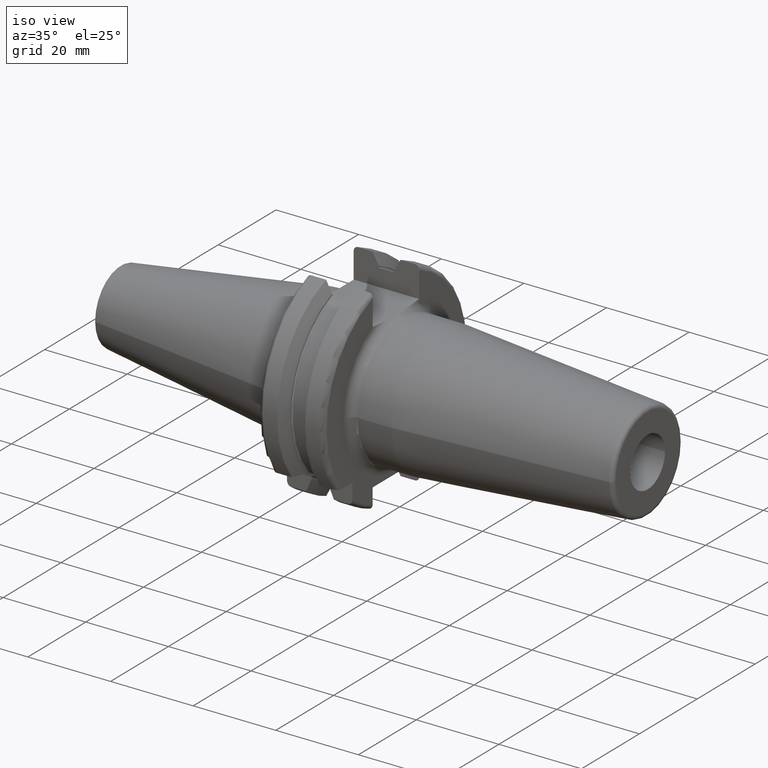
[diagram: clean part render]
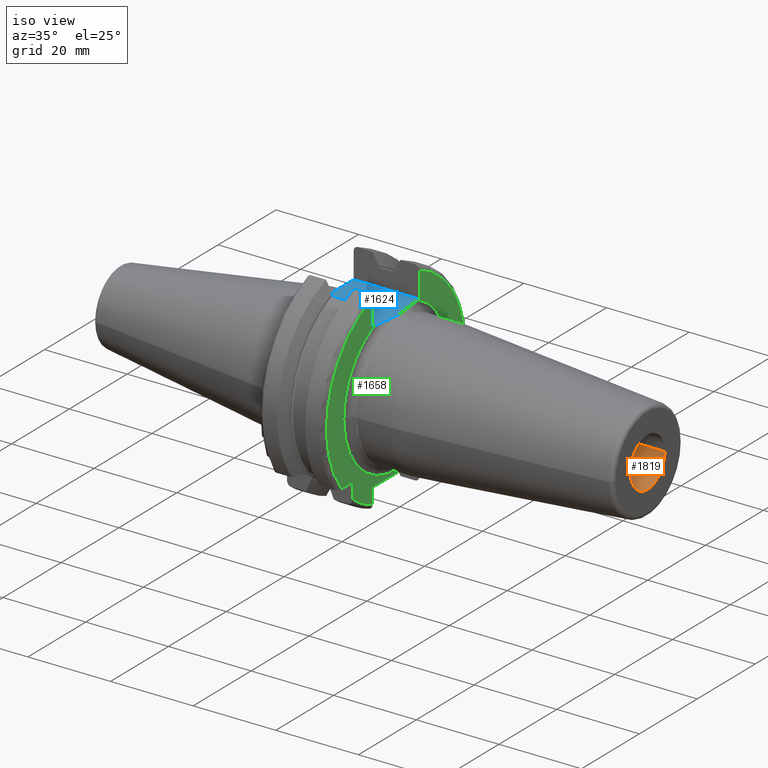
[diagram: same view with three faces highlighted in distinct colors, each labeled with its STEP entity id]
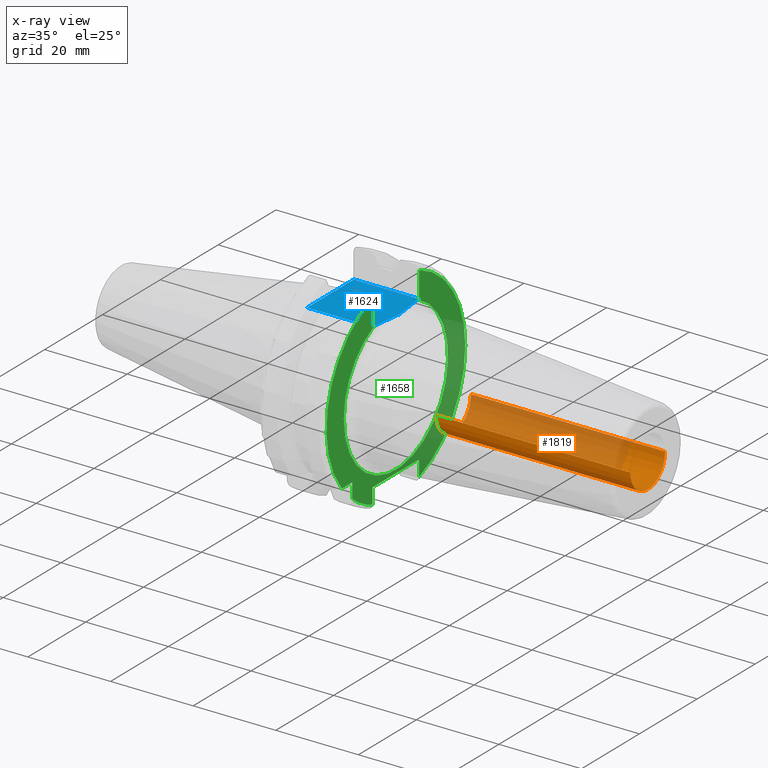
[diagram: x-ray of the same camera — body ghosted, the three highlighted faces saturated]
A machine part, iso view with three faces highlighted in distinct colors.
The next image is the same camera in x-ray (body ghosted, the three faces saturated) — at least one of them is partly hidden behind the body in this view.
Their STEP definitions:

[orange] entity #1819 — the highlighted cylindrical surface (edge-blend (fillet) strip) has radius 6 mm, axis along (1, 0, 0).
#280=CARTESIAN_POINT('',(8.E1,0.E0,0.E0));
#281=DIRECTION('',(-1.E0,0.E0,0.E0));
#282=DIRECTION('',(0.E0,1.E0,0.E0));
#283=AXIS2_PLACEMENT_3D('',#280,#281,#282);
#300=DIRECTION('',(1.E0,0.E0,0.E0));
#301=VECTOR('',#300,4.7E1);
#302=CARTESIAN_POINT('',(3.3E1,6.E0,0.E0));
#303=LINE('',#302,#301);
#304=DIRECTION('',(1.E0,0.E0,0.E0));
#305=VECTOR('',#304,4.7E1);
#306=CARTESIAN_POINT('',(3.3E1,-6.E0,0.E0));
#307=LINE('',#306,#305);
#308=CARTESIAN_POINT('',(3.3E1,0.E0,0.E0));
#309=DIRECTION('',(-1.E0,0.E0,0.E0));
#310=DIRECTION('',(0.E0,1.E0,0.E0));
#311=AXIS2_PLACEMENT_3D('',#308,#309,#310);
#1405=CARTESIAN_POINT('',(3.3E1,6.E0,0.E0));
#1406=CARTESIAN_POINT('',(8.E1,6.E0,0.E0));
#1407=VERTEX_POINT('',#1405);
#1408=VERTEX_POINT('',#1406);
#1409=CARTESIAN_POINT('',(3.3E1,-6.E0,0.E0));
#1410=CARTESIAN_POINT('',(8.E1,-6.E0,0.E0));
#1411=VERTEX_POINT('',#1409);
#1412=VERTEX_POINT('',#1410);
#1807=CARTESIAN_POINT('',(1.60025E1,0.E0,0.E0));
#1808=DIRECTION('',(1.E0,0.E0,0.E0));
#1809=DIRECTION('',(0.E0,-1.E0,0.E0));
#1810=AXIS2_PLACEMENT_3D('',#1807,#1808,#1809);
#1811=CYLINDRICAL_SURFACE('',#1810,6.E0);
#1812=ORIENTED_EDGE('',*,*,#1797,.T.);
#1813=ORIENTED_EDGE('',*,*,#1787,.T.);
#1814=ORIENTED_EDGE('',*,*,#1801,.F.);
#1816=ORIENTED_EDGE('',*,*,#1815,.F.);
#1817=EDGE_LOOP('',(#1812,#1813,#1814,#1816));
#1818=FACE_OUTER_BOUND('',#1817,.F.);
#1819=ADVANCED_FACE('',(#1818),#1811,.F.);
#284=CIRCLE('',#283,6.E0);
#312=CIRCLE('',#311,6.E0);
#1787=EDGE_CURVE('',#1408,#1412,#284,.T.);
#1797=EDGE_CURVE('',#1407,#1408,#303,.T.);
#1801=EDGE_CURVE('',#1411,#1412,#307,.T.);
#1815=EDGE_CURVE('',#1407,#1411,#312,.T.);

[blue] entity #1624 — the highlighted planar face has unit normal (0, 0, -1).
#111=CARTESIAN_POINT('',(3.2E0,-2.717650639799E0,1.63E1));
#112=CARTESIAN_POINT('',(3.2E0,-2.458788626584E0,1.63E1));
#113=CARTESIAN_POINT('',(3.194666280862E0,-1.941100283184E0,1.63E1));
#114=CARTESIAN_POINT('',(3.182373208918E0,-1.164688386608E0,1.63E1));
#115=CARTESIAN_POINT('',(3.174023169169E0,-3.882555189853E-1,1.63E1));
#116=CARTESIAN_POINT('',(3.174022963008E0,3.882236917262E-1,1.63E1));
#117=CARTESIAN_POINT('',(3.182372846860E0,1.164665256250E0,1.63E1));
#118=CARTESIAN_POINT('',(3.194666145228E0,1.941090041629E0,1.63E1));
#119=CARTESIAN_POINT('',(3.2E0,2.458785249288E0,1.63E1));
#120=CARTESIAN_POINT('',(3.2E0,2.717650639799E0,1.63E1));
#132=DIRECTION('',(-1.E0,0.E0,0.E0));
#133=VECTOR('',#132,1.585E1);
#134=CARTESIAN_POINT('',(1.905E1,-8.05E0,1.63E1));
#135=LINE('',#134,#133);
#136=DIRECTION('',(0.E0,9.999999985772E-1,-5.334352017981E-5));
#137=VECTOR('',#136,4.139601045051E-1);
#138=CARTESIAN_POINT('',(1.905E1,7.636039896084E0,1.630002208209E1));
#139=LINE('',#138,#137);
#168=DIRECTION('',(0.E0,9.999999999539E-1,9.603726885269E-6));
#169=VECTOR('',#168,4.139071397054E-1);
#170=CARTESIAN_POINT('',(1.905E1,-8.05E0,1.63E1));
#171=LINE('',#170,#169);
#187=CARTESIAN_POINT('',(1.905E1,7.636039896084E0,1.630002208209E1));
#188=CARTESIAN_POINT('',(1.905E1,7.291763343909E0,1.630002208209E1));
#189=CARTESIAN_POINT('',(1.908137784568E1,6.593773973026E0,1.629998975167E1));
#190=CARTESIAN_POINT('',(1.920812730181E1,5.491495649704E0,1.630000274604E1));
#191=CARTESIAN_POINT('',(1.938403963995E1,4.413604792073E0,1.629999926418E1));
#192=CARTESIAN_POINT('',(1.958165543689E1,3.358510638508E0,1.630000019723E1));
#193=CARTESIAN_POINT('',(1.977302991436E1,2.327061789655E0,1.629999994690E1));
#194=CARTESIAN_POINT('',(1.993755594715E1,1.260831732352E0,1.630000001517E1));
#195=CARTESIAN_POINT('',(1.999627977224E1,4.367002982890E-1,1.63E1));
#196=CARTESIAN_POINT('',(1.999643398435E1,3.596892277610E-3,1.63E1));
#198=CARTESIAN_POINT('',(1.999643398435E1,3.596892277610E-3,1.63E1));
#199=CARTESIAN_POINT('',(1.999658834906E1,-4.299350802492E-1,1.63E1));
#200=CARTESIAN_POINT('',(1.993831156873E1,-1.254935551175E0,1.630000000273E1));
#201=CARTESIAN_POINT('',(1.977381178859E1,-2.322674485572E0,1.629999999044E1));
#202=CARTESIAN_POINT('',(1.958231074555E1,-3.355080396392E0,1.630000003550E1));
#203=CARTESIAN_POINT('',(1.938448877613E1,-4.411063006171E0,1.629999986754E1));
#204=CARTESIAN_POINT('',(1.920837291690E1,-5.489679660263E0,1.630000049432E1));
#205=CARTESIAN_POINT('',(1.908141756301E1,-6.593007123383E0,1.629999815517E1));
#206=CARTESIAN_POINT('',(1.905E1,-7.291579317371E0,1.630000397505E1));
#207=CARTESIAN_POINT('',(1.905E1,-7.636092860314E0,1.630000397505E1));
#313=DIRECTION('',(-1.E0,0.E0,0.E0));
#314=VECTOR('',#313,1.585E1);
#315=CARTESIAN_POINT('',(1.905E1,8.05E0,1.63E1));
#316=LINE('',#315,#314);
#940=DIRECTION('',(0.E0,1.E0,0.E0));
#941=VECTOR('',#940,5.332349360201E0);
#942=CARTESIAN_POINT('',(3.2E0,2.717650639799E0,1.63E1));
#943=LINE('',#942,#941);
#944=DIRECTION('',(0.E0,1.E0,0.E0));
#945=VECTOR('',#944,5.332349360201E0);
#946=CARTESIAN_POINT('',(3.2E0,-8.05E0,1.63E1));
#947=LINE('',#946,#945);
#1342=CARTESIAN_POINT('',(1.905E1,-8.05E0,1.63E1));
#1344=VERTEX_POINT('',#1342);
#1346=CARTESIAN_POINT('',(1.905E1,8.05E0,1.63E1));
#1348=VERTEX_POINT('',#1346);
#1372=CARTESIAN_POINT('',(3.2E0,-8.05E0,1.63E1));
#1374=VERTEX_POINT('',#1372);
#1375=CARTESIAN_POINT('',(3.2E0,-2.717650639799E0,1.63E1));
#1376=VERTEX_POINT('',#1375);
#1377=CARTESIAN_POINT('',(3.2E0,2.717650639799E0,1.63E1));
#1378=CARTESIAN_POINT('',(3.2E0,8.05E0,1.63E1));
#1379=VERTEX_POINT('',#1377);
#1380=VERTEX_POINT('',#1378);
#1431=CARTESIAN_POINT('',(1.905E1,-7.636105528954E0,1.629999669787E1));
#1433=VERTEX_POINT('',#1431);
#1435=CARTESIAN_POINT('',(1.905E1,7.636039896084E0,1.630002208209E1));
#1436=VERTEX_POINT('',#1435);
#1437=VERTEX_POINT('',#198);
#1600=CARTESIAN_POINT('',(1.905E1,-8.05E0,1.63E1));
#1601=DIRECTION('',(0.E0,0.E0,-1.E0));
#1602=DIRECTION('',(0.E0,1.E0,0.E0));
#1603=AXIS2_PLACEMENT_3D('',#1600,#1601,#1602);
#1604=PLANE('',#1603);
#1606=ORIENTED_EDGE('',*,*,#1605,.F.);
#1608=ORIENTED_EDGE('',*,*,#1607,.T.);
#1610=ORIENTED_EDGE('',*,*,#1609,.T.);
#1612=ORIENTED_EDGE('',*,*,#1611,.F.);
#1614=ORIENTED_EDGE('',*,*,#1613,.T.);
#1616=ORIENTED_EDGE('',*,*,#1615,.T.);
#1617=ORIENTED_EDGE('',*,*,#1588,.T.);
#1619=ORIENTED_EDGE('',*,*,#1618,.T.);
#1621=ORIENTED_EDGE('',*,*,#1620,.F.);
#1622=EDGE_LOOP('',(#1606,#1608,#1610,#1612,#1614,#1616,#1617,#1619,#1621));
#1623=FACE_OUTER_BOUND('',#1622,.F.);
#1624=ADVANCED_FACE('',(#1623),#1604,.F.);
#121=B_SPLINE_CURVE_WITH_KNOTS('',3,(#111,#112,#113,#114,#115,#116,#117,#118,
#119,#120),.UNSPECIFIED.,.F.,.F.,(4,1,1,1,1,1,1,4),(0.E0,1.428571428571E-1,
2.857142857143E-1,4.285714285714E-1,5.714285714286E-1,7.142857142857E-1,
8.571428571429E-1,1.E0),.UNSPECIFIED.);
#197=B_SPLINE_CURVE_WITH_KNOTS('',3,(#187,#188,#189,#190,#191,#192,#193,#194,
#195,#196),.UNSPECIFIED.,.F.,.F.,(4,1,1,1,1,1,1,4),(0.E0,1.428571428571E-1,
2.857142857143E-1,4.285714285714E-1,5.714285714286E-1,7.142857142857E-1,
8.571428571429E-1,1.E0),.UNSPECIFIED.);
#208=B_SPLINE_CURVE_WITH_KNOTS('',3,(#198,#199,#200,#201,#202,#203,#204,#205,
#206,#207),.UNSPECIFIED.,.F.,.F.,(4,1,1,1,1,1,1,4),(0.E0,1.428571428571E-1,
2.857142857143E-1,4.285714285714E-1,5.714285714286E-1,7.142857142857E-1,
8.571428571429E-1,1.E0),.UNSPECIFIED.);
#1588=EDGE_CURVE('',#1376,#1379,#121,.T.);
#1605=EDGE_CURVE('',#1436,#1348,#139,.T.);
#1607=EDGE_CURVE('',#1436,#1437,#197,.T.);
#1609=EDGE_CURVE('',#1437,#1433,#208,.T.);
#1611=EDGE_CURVE('',#1344,#1433,#171,.T.);
#1613=EDGE_CURVE('',#1344,#1374,#135,.T.);
#1615=EDGE_CURVE('',#1374,#1376,#947,.T.);
#1618=EDGE_CURVE('',#1379,#1380,#943,.T.);
#1620=EDGE_CURVE('',#1348,#1380,#316,.T.);

[green] entity #1658 — the highlighted planar face has unit normal (1, 0, 0).
#136=DIRECTION('',(0.E0,9.999999985772E-1,-5.334352017981E-5));
#137=VECTOR('',#136,4.139601045051E-1);
#138=CARTESIAN_POINT('',(1.905E1,7.636039896084E0,1.630002208209E1));
#139=LINE('',#138,#137);
#140=DIRECTION('',(0.E0,0.E0,-1.E0));
#141=VECTOR('',#140,6.299061927434E0);
#142=CARTESIAN_POINT('',(1.905E1,8.05E0,2.259906192743E1));
#143=LINE('',#142,#141);
#144=DIRECTION('',(0.E0,0.E0,1.E0));
#145=VECTOR('',#144,3.799061927434E0);
#146=CARTESIAN_POINT('',(1.905E1,8.05E0,-2.259906192743E1));
#147=LINE('',#146,#145);
#148=DIRECTION('',(0.E0,-1.E0,0.E0));
#149=VECTOR('',#148,1.61E1);
#150=CARTESIAN_POINT('',(1.905E1,8.05E0,-1.88E1));
#151=LINE('',#150,#149);
#152=DIRECTION('',(0.E0,0.E0,1.E0));
#153=VECTOR('',#152,3.799061927434E0);
#154=CARTESIAN_POINT('',(1.905E1,-8.05E0,-2.259906192743E1));
#155=LINE('',#154,#153);
#156=DIRECTION('',(0.E0,0.E0,1.E0));
#157=VECTOR('',#156,3.722182030949E0);
#158=CARTESIAN_POINT('',(1.905E1,-1.5E1,-1.872218203095E1));
#159=LINE('',#158,#157);
#160=DIRECTION('',(0.E0,1.E0,0.E0));
#161=VECTOR('',#160,3.722182030949E0);
#162=CARTESIAN_POINT('',(1.905E1,-1.872218203095E1,-1.5E1));
#163=LINE('',#162,#161);
#164=DIRECTION('',(0.E0,0.E0,-1.E0));
#165=VECTOR('',#164,6.299061927434E0);
#166=CARTESIAN_POINT('',(1.905E1,-8.05E0,2.259906192743E1));
#167=LINE('',#166,#165);
#168=DIRECTION('',(0.E0,9.999999999539E-1,9.603726885269E-6));
#169=VECTOR('',#168,4.139071397054E-1);
#170=CARTESIAN_POINT('',(1.905E1,-8.05E0,1.63E1));
#171=LINE('',#170,#169);
#172=CARTESIAN_POINT('',(1.905E1,0.E0,0.E0));
#173=DIRECTION('',(1.E0,0.E0,0.E0));
#174=DIRECTION('',(0.E0,-4.242280849419E-1,9.055553721041E-1));
#175=AXIS2_PLACEMENT_3D('',#172,#173,#174);
#177=CARTESIAN_POINT('',(1.905E1,0.E0,0.E0));
#178=DIRECTION('',(-1.E0,0.E0,0.E0));
#179=DIRECTION('',(0.E0,4.242261288291E-1,9.055562884872E-1));
#180=AXIS2_PLACEMENT_3D('',#177,#178,#179);
#775=CARTESIAN_POINT('',(1.905E1,0.E0,0.E0));
#776=DIRECTION('',(-1.E0,0.E0,0.E0));
#777=DIRECTION('',(0.E0,-3.355564818674E-1,-9.420200886800E-1));
#778=AXIS2_PLACEMENT_3D('',#775,#776,#777);
#780=CARTESIAN_POINT('',(1.905E1,0.E0,0.E0));
#781=DIRECTION('',(1.E0,0.E0,0.E0));
#782=DIRECTION('',(0.E0,-3.355564818674E-1,9.420200886800E-1));
#783=AXIS2_PLACEMENT_3D('',#780,#781,#782);
#827=CARTESIAN_POINT('',(1.905E1,0.E0,0.E0));
#828=DIRECTION('',(1.E0,0.E0,0.E0));
#829=DIRECTION('',(0.E0,3.355564818674E-1,-9.420200886800E-1));
#830=AXIS2_PLACEMENT_3D('',#827,#828,#829);
#1333=CARTESIAN_POINT('',(1.905E1,8.05E0,-2.259906192743E1));
#1334=CARTESIAN_POINT('',(1.905E1,8.05E0,-1.88E1));
#1335=VERTEX_POINT('',#1333);
#1336=VERTEX_POINT('',#1334);
#1337=CARTESIAN_POINT('',(1.905E1,-8.05E0,-1.88E1));
#1338=VERTEX_POINT('',#1337);
#1339=CARTESIAN_POINT('',(1.905E1,-8.05E0,-2.259906192743E1));
#1340=VERTEX_POINT('',#1339);
#1341=CARTESIAN_POINT('',(1.905E1,-8.05E0,2.259906192743E1));
#1342=CARTESIAN_POINT('',(1.905E1,-8.05E0,1.63E1));
#1343=VERTEX_POINT('',#1341);
#1344=VERTEX_POINT('',#1342);
#1345=CARTESIAN_POINT('',(1.905E1,8.05E0,2.259906192743E1));
#1346=CARTESIAN_POINT('',(1.905E1,8.05E0,1.63E1));
#1347=VERTEX_POINT('',#1345);
#1348=VERTEX_POINT('',#1346);
#1349=CARTESIAN_POINT('',(1.905E1,-1.5E1,-1.872218203095E1));
#1350=CARTESIAN_POINT('',(1.905E1,-1.5E1,-1.5E1));
#1351=VERTEX_POINT('',#1349);
#1352=VERTEX_POINT('',#1350);
#1353=CARTESIAN_POINT('',(1.905E1,-1.872218203095E1,-1.5E1));
#1354=VERTEX_POINT('',#1353);
#1431=CARTESIAN_POINT('',(1.905E1,-7.636105528954E0,1.629999669787E1));
#1432=CARTESIAN_POINT('',(1.905E1,-1.8E1,0.E0));
#1433=VERTEX_POINT('',#1431);
#1434=VERTEX_POINT('',#1432);
#1435=CARTESIAN_POINT('',(1.905E1,7.636039896084E0,1.630002208209E1));
#1436=VERTEX_POINT('',#1435);
#1625=CARTESIAN_POINT('',(1.905E1,0.E0,0.E0));
#1626=DIRECTION('',(1.E0,0.E0,0.E0));
#1627=DIRECTION('',(0.E0,-1.E0,0.E0));
#1628=AXIS2_PLACEMENT_3D('',#1625,#1626,#1627);
#1629=PLANE('',#1628);
#1631=ORIENTED_EDGE('',*,*,#1630,.F.);
#1632=ORIENTED_EDGE('',*,*,#1605,.T.);
#1634=ORIENTED_EDGE('',*,*,#1633,.F.);
#1636=ORIENTED_EDGE('',*,*,#1635,.F.);
#1638=ORIENTED_EDGE('',*,*,#1637,.T.);
#1640=ORIENTED_EDGE('',*,*,#1639,.T.);
#1642=ORIENTED_EDGE('',*,*,#1641,.F.);
#1644=ORIENTED_EDGE('',*,*,#1643,.T.);
#1646=ORIENTED_EDGE('',*,*,#1645,.T.);
#1648=ORIENTED_EDGE('',*,*,#1647,.F.);
#1650=ORIENTED_EDGE('',*,*,#1649,.F.);
#1652=ORIENTED_EDGE('',*,*,#1651,.T.);
#1653=ORIENTED_EDGE('',*,*,#1611,.T.);
#1655=ORIENTED_EDGE('',*,*,#1654,.T.);
#1656=EDGE_LOOP('',(#1631,#1632,#1634,#1636,#1638,#1640,#1642,#1644,#1646,#1648,
#1650,#1652,#1653,#1655));
#1657=FACE_OUTER_BOUND('',#1656,.F.);
#1658=ADVANCED_FACE('',(#1657),#1629,.T.);
#176=CIRCLE('',#175,1.8E1);
#181=CIRCLE('',#180,1.8E1);
#779=CIRCLE('',#778,2.399E1);
#784=CIRCLE('',#783,2.399E1);
#831=CIRCLE('',#830,2.399E1);
#1605=EDGE_CURVE('',#1436,#1348,#139,.T.);
#1611=EDGE_CURVE('',#1344,#1433,#171,.T.);
#1630=EDGE_CURVE('',#1436,#1434,#181,.T.);
#1633=EDGE_CURVE('',#1347,#1348,#143,.T.);
#1635=EDGE_CURVE('',#1335,#1347,#831,.T.);
#1637=EDGE_CURVE('',#1335,#1336,#147,.T.);
#1639=EDGE_CURVE('',#1336,#1338,#151,.T.);
#1641=EDGE_CURVE('',#1340,#1338,#155,.T.);
#1643=EDGE_CURVE('',#1340,#1351,#779,.T.);
#1645=EDGE_CURVE('',#1351,#1352,#159,.T.);
#1647=EDGE_CURVE('',#1354,#1352,#163,.T.);
#1649=EDGE_CURVE('',#1343,#1354,#784,.T.);
#1651=EDGE_CURVE('',#1343,#1344,#167,.T.);
#1654=EDGE_CURVE('',#1433,#1434,#176,.T.);